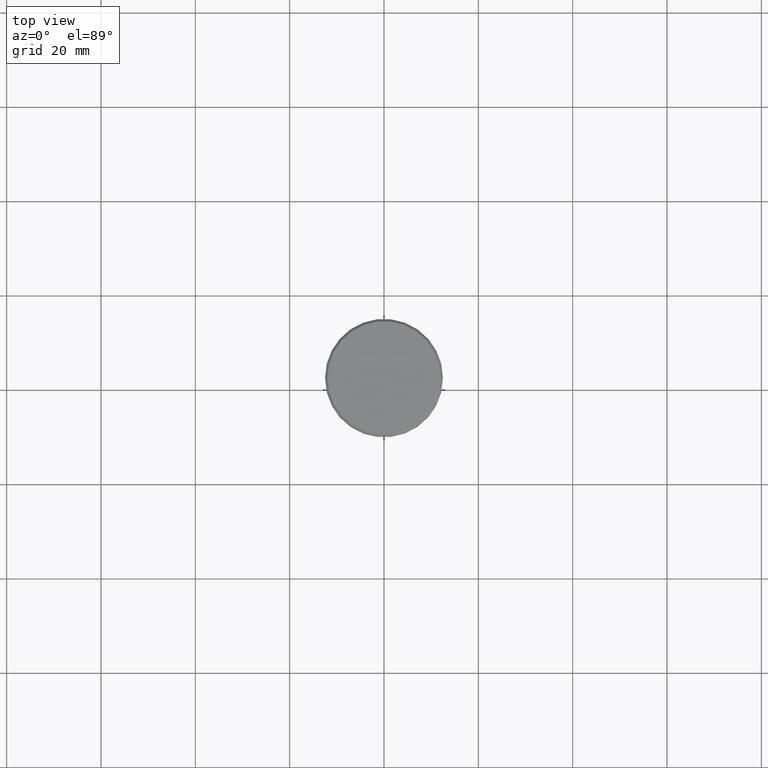
[diagram: clean part render]
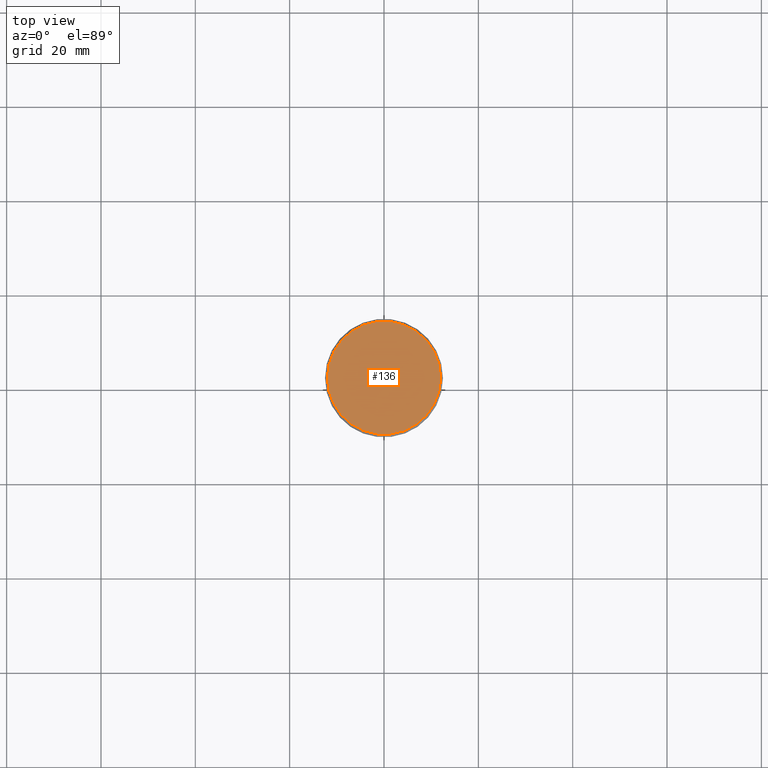
[diagram: same view with one face highlighted and labeled with its STEP entity id]
A machine part, top view. The second image highlights one B-rep face of the part: STEP entity #136.
In plain terms, the highlighted planar face has unit normal (0, -0, 1).
Its self-contained STEP definition (entity closure, byte-faithful):
#54 = CARTESIAN_POINT ( 'NONE',  ( 0.000000000000000000, 0.000000000000000000, 0.000000000000000000 ) ) ;
#124 = AXIS2_PLACEMENT_3D ( 'NONE', #996, #526, #989 ) ;
#136 = ADVANCED_FACE ( 'NONE', ( #767 ), #1135, .T. ) ;
#228 = EDGE_LOOP ( 'NONE', ( #873, #947 ) ) ;
#254 = AXIS2_PLACEMENT_3D ( 'NONE', #54, #678, #292 ) ;
#292 = DIRECTION ( 'NONE',  ( 1.000000000000000000, 0.000000000000000000, 0.000000000000000000 ) ) ;
#339 = CARTESIAN_POINT ( 'NONE',  ( 0.000000000000000000, 0.000000000000000000, 0.000000000000000000 ) ) ;
#385 = EDGE_CURVE ( 'NONE', #406, #1112, #780, .T. ) ;
#406 = VERTEX_POINT ( 'NONE', #452 ) ;
#410 = EDGE_CURVE ( 'NONE', #1112, #406, #1049, .T. ) ;
#452 = CARTESIAN_POINT ( 'NONE',  ( 11.99999999999999645, 1.500192328955507537E-15, 0.000000000000000000 ) ) ;
#526 = DIRECTION ( 'NONE',  ( -0.000000000000000000, -0.000000000000000000, 1.000000000000000000 ) ) ;
#536 = DIRECTION ( 'NONE',  ( 1.000000000000000000, 0.000000000000000000, 0.000000000000000000 ) ) ;
#603 = AXIS2_PLACEMENT_3D ( 'NONE', #339, #899, #536 ) ;
#678 = DIRECTION ( 'NONE',  ( 0.000000000000000000, -0.000000000000000000, 1.000000000000000000 ) ) ;
#767 = FACE_OUTER_BOUND ( 'NONE', #228, .T. ) ;
#780 = CIRCLE ( 'NONE', #124, 11.99999999999999645 ) ;
#873 = ORIENTED_EDGE ( 'NONE', *, *, #410, .T. ) ;
#899 = DIRECTION ( 'NONE',  ( -0.000000000000000000, -0.000000000000000000, 1.000000000000000000 ) ) ;
#947 = ORIENTED_EDGE ( 'NONE', *, *, #385, .T. ) ;
#989 = DIRECTION ( 'NONE',  ( 1.000000000000000000, 0.000000000000000000, 0.000000000000000000 ) ) ;
#996 = CARTESIAN_POINT ( 'NONE',  ( 0.000000000000000000, 0.000000000000000000, 0.000000000000000000 ) ) ;
#1008 = CARTESIAN_POINT ( 'NONE',  ( -11.99999999999999645, 0.000000000000000000, 0.000000000000000000 ) ) ;
#1049 = CIRCLE ( 'NONE', #603, 11.99999999999999645 ) ;
#1112 = VERTEX_POINT ( 'NONE', #1008 ) ;
#1135 = PLANE ( 'NONE',  #254 ) ;